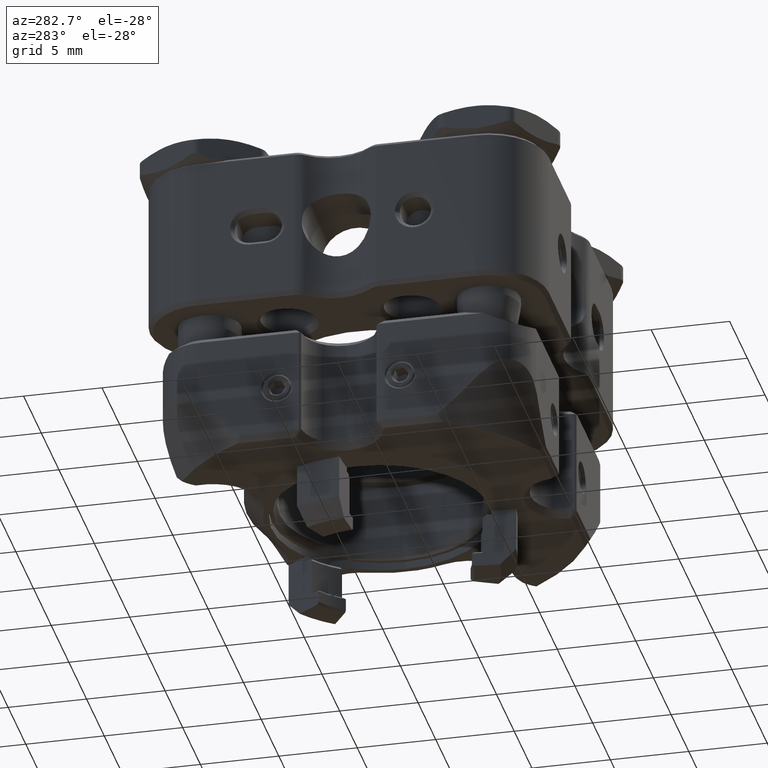
[diagram: clean part render]
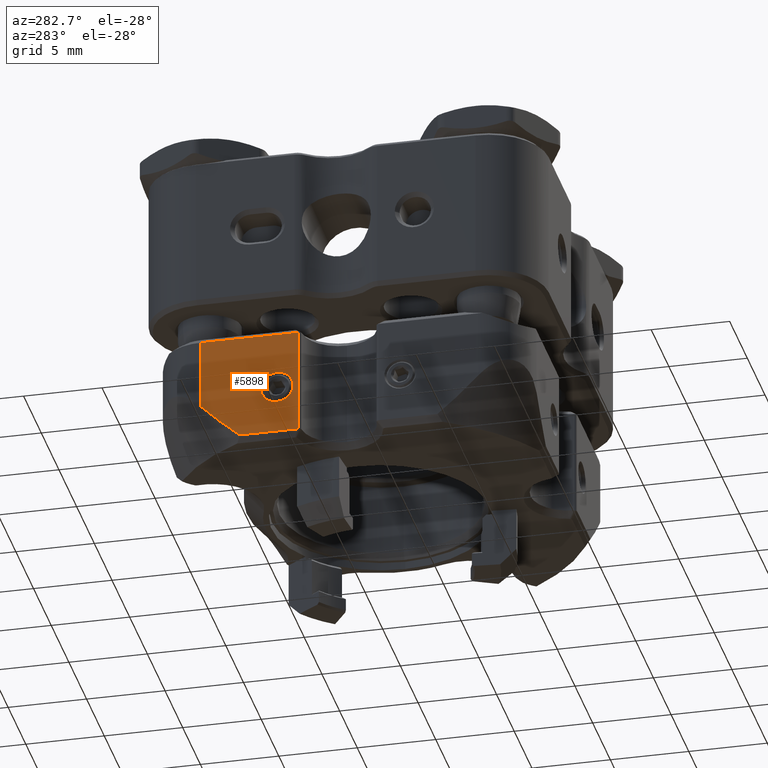
[diagram: same view with one face highlighted and labeled with its STEP entity id]
A machine part, auxiliary view. The second image highlights one B-rep face of the part: STEP entity #5898.
In plain terms, the highlighted planar face has unit normal (1, -0, 0).
Its self-contained STEP definition (entity closure, byte-faithful):
#121 = EDGE_CURVE ( 'NONE', #11329, #10761, #9615, .T. ) ;
#187 = VERTEX_POINT ( 'NONE', #3381 ) ;
#389 = AXIS2_PLACEMENT_3D ( 'NONE', #13571, #12095, #982 ) ;
#402 = CARTESIAN_POINT ( 'NONE',  ( 10.16000000000000192, 4.349052189279712266, 1.485900000000001775 ) ) ;
#661 = EDGE_LOOP ( 'NONE', ( #7081, #740, #6115, #10949, #8179 ) ) ;
#740 = ORIENTED_EDGE ( 'NONE', *, *, #7512, .T. ) ;
#982 = DIRECTION ( 'NONE',  ( 0.000000000000000000, 0.000000000000000000, 1.000000000000000000 ) ) ;
#1404 = VECTOR ( 'NONE', #11201, 1000.000000000000000 ) ;
#1582 = CARTESIAN_POINT ( 'NONE',  ( 10.16000000000000192, 10.54099999999999859, -0.7826677846635562430 ) ) ;
#1603 = EDGE_CURVE ( 'NONE', #11329, #187, #14869, .T. ) ;
#2128 = VECTOR ( 'NONE', #3922, 1000.000000000000000 ) ;
#2206 = FACE_OUTER_BOUND ( 'NONE', #661, .T. ) ;
#2250 = CIRCLE ( 'NONE', #10287, 1.024999999999999911 ) ;
#2296 = CARTESIAN_POINT ( 'NONE',  ( 10.16000000000000192, 8.079845602311221953, 1.485899999999961807 ) ) ;
#2326 = DIRECTION ( 'NONE',  ( 0.000000000000000000, 0.000000000000000000, -1.000000000000000000 ) ) ;
#3381 = CARTESIAN_POINT ( 'NONE',  ( 10.16000000000000192, 10.54099999999999859, -0.7826677846635562430 ) ) ;
#3670 = CARTESIAN_POINT ( 'NONE',  ( 10.16000000000000192, 0.000000000000000000, -5.295900000000001384 ) ) ;
#3922 = DIRECTION ( 'NONE',  ( -0.000000000000000000, -0.000000000000000000, -1.000000000000000000 ) ) ;
#4034 = CARTESIAN_POINT ( 'NONE',  ( 10.16000000000000192, 9.760886865410538960, 0.01688245796729252735 ) ) ;
#4229 = VERTEX_POINT ( 'NONE', #9551 ) ;
#4233 = AXIS2_PLACEMENT_3D ( 'NONE', #11077, #9552, #2326 ) ;
#4596 = CARTESIAN_POINT ( 'NONE',  ( 10.16000000000000192, 4.349052189279712266, -5.295900000000001384 ) ) ;
#4620 = CARTESIAN_POINT ( 'NONE',  ( 10.16000000000000192, 4.349052189279712266, 5.676900000000000723 ) ) ;
#4772 = DIRECTION ( 'NONE',  ( -0.000000000000000000, -0.000000000000000000, -1.000000000000000000 ) ) ;
#5428 = CARTESIAN_POINT ( 'NONE',  ( 10.16000000000000192, 8.079845602311221953, 1.485899999999961807 ) ) ;
#5898 = ADVANCED_FACE ( 'NONE', ( #9834, #2206 ), #7175, .F. ) ;
#6115 = ORIENTED_EDGE ( 'NONE', *, *, #10380, .F. ) ;
#6564 = CIRCLE ( 'NONE', #4233, 1.024999999999999911 ) ;
#6624 = EDGE_CURVE ( 'NONE', #10761, #7019, #13460, .T. ) ;
#6841 = VERTEX_POINT ( 'NONE', #11078 ) ;
#7019 = VERTEX_POINT ( 'NONE', #4596 ) ;
#7081 = ORIENTED_EDGE ( 'NONE', *, *, #6624, .T. ) ;
#7175 = PLANE ( 'NONE',  #389 ) ;
#7486 = ORIENTED_EDGE ( 'NONE', *, *, #12566, .F. ) ;
#7512 = EDGE_CURVE ( 'NONE', #7019, #15321, #11043, .T. ) ;
#8091 = CARTESIAN_POINT ( 'NONE',  ( 10.16000000000000192, 5.714999999999999858, -1.612899999999999556 ) ) ;
#8179 = ORIENTED_EDGE ( 'NONE', *, *, #121, .T. ) ;
#8258 = DIRECTION ( 'NONE',  ( 0.000000000000000000, -1.000000000000000000, 0.000000000000000000 ) ) ;
#8924 = VECTOR ( 'NONE', #8258, 1000.000000000000000 ) ;
#9062 = CARTESIAN_POINT ( 'NONE',  ( 10.16000000000000192, 8.949479087551262424, 0.7827373853749122201 ) ) ;
#9239 = DIRECTION ( 'NONE',  ( 1.000000000000000000, -0.000000000000000000, -0.000000000000000000 ) ) ;
#9551 = CARTESIAN_POINT ( 'NONE',  ( 10.16000000000000192, 5.714999999999999858, -2.637899999999999245 ) ) ;
#9552 = DIRECTION ( 'NONE',  ( 1.000000000000000000, -0.000000000000000000, -0.000000000000000000 ) ) ;
#9615 = LINE ( 'NONE', #13519, #8924 ) ;
#9834 = FACE_BOUND ( 'NONE', #15533, .T. ) ;
#10287 = AXIS2_PLACEMENT_3D ( 'NONE', #8091, #9239, #13051 ) ;
#10380 = EDGE_CURVE ( 'NONE', #187, #15321, #14065, .T. ) ;
#10761 = VERTEX_POINT ( 'NONE', #402 ) ;
#10949 = ORIENTED_EDGE ( 'NONE', *, *, #1603, .F. ) ;
#11043 = LINE ( 'NONE', #3670, #1404 ) ;
#11077 = CARTESIAN_POINT ( 'NONE',  ( 10.16000000000000192, 5.714999999999999858, -1.612899999999999556 ) ) ;
#11078 = CARTESIAN_POINT ( 'NONE',  ( 10.16000000000000192, 5.714999999999999858, -0.5878999999999997561 ) ) ;
#11115 = ORIENTED_EDGE ( 'NONE', *, *, #15655, .F. ) ;
#11201 = DIRECTION ( 'NONE',  ( 0.000000000000000000, 1.000000000000000000, 0.000000000000000000 ) ) ;
#11329 = VERTEX_POINT ( 'NONE', #2296 ) ;
#12095 = DIRECTION ( 'NONE',  ( -1.000000000000000000, 0.000000000000000000, 0.000000000000000000 ) ) ;
#12427 = CARTESIAN_POINT ( 'NONE',  ( 10.16000000000000192, 10.54099999999999859, -5.295900000000001384 ) ) ;
#12516 = CARTESIAN_POINT ( 'NONE',  ( 10.16000000000000192, 10.54099999999999859, 5.676900000000000723 ) ) ;
#12566 = EDGE_CURVE ( 'NONE', #4229, #6841, #2250, .T. ) ;
#13051 = DIRECTION ( 'NONE',  ( 0.000000000000000000, 0.000000000000000000, -1.000000000000000000 ) ) ;
#13460 = LINE ( 'NONE', #4620, #15706 ) ;
#13519 = CARTESIAN_POINT ( 'NONE',  ( 10.16000000000000192, 4.546599999999996200, 1.485900000000001775 ) ) ;
#13571 = CARTESIAN_POINT ( 'NONE',  ( 10.16000000000000192, 0.000000000000000000, 5.676900000000000723 ) ) ;
#14065 = LINE ( 'NONE', #12516, #2128 ) ;
#14869 = B_SPLINE_CURVE_WITH_KNOTS ( 'NONE', 3,
 ( #5428, #9062, #4034, #1582 ),
 .UNSPECIFIED., .F., .F.,
 ( 4, 4 ),
 ( 0.01037360531770521732, 0.01375156488310251210 ),
 .UNSPECIFIED. ) ;
#15321 = VERTEX_POINT ( 'NONE', #12427 ) ;
#15533 = EDGE_LOOP ( 'NONE', ( #7486, #11115 ) ) ;
#15655 = EDGE_CURVE ( 'NONE', #6841, #4229, #6564, .T. ) ;
#15706 = VECTOR ( 'NONE', #4772, 1000.000000000000000 ) ;